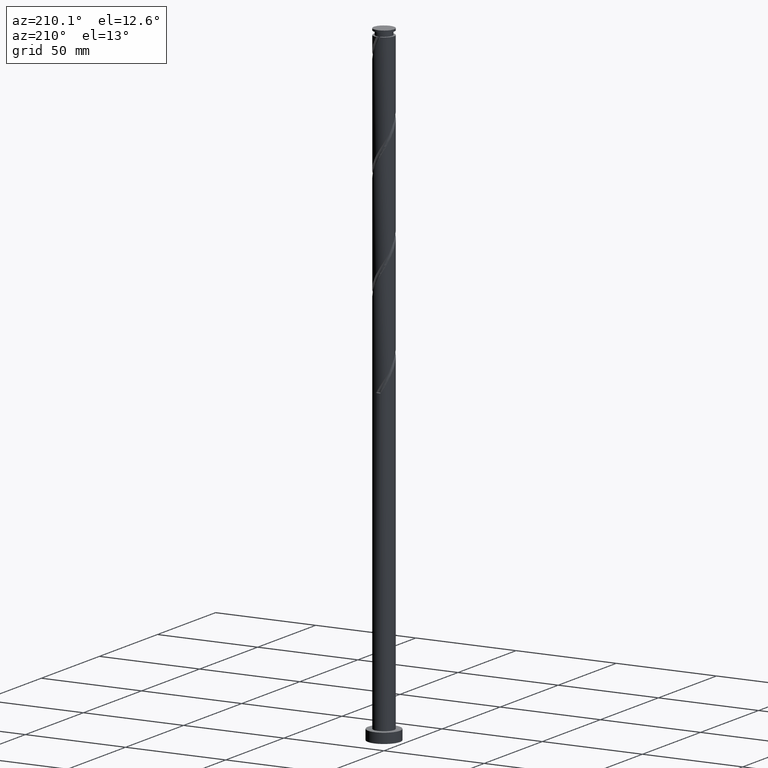
[diagram: clean part render]
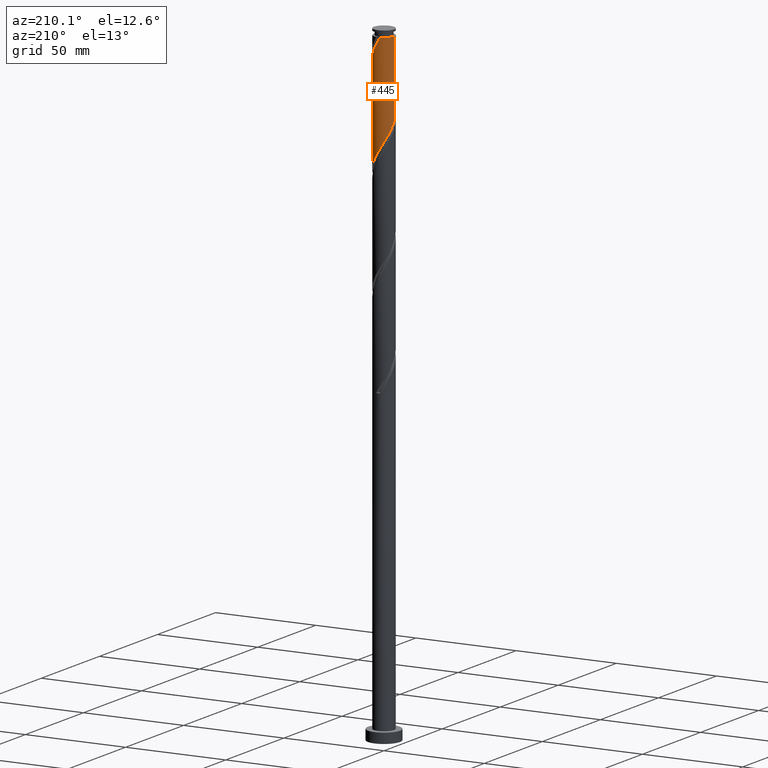
[diagram: same view with one face highlighted and labeled with its STEP entity id]
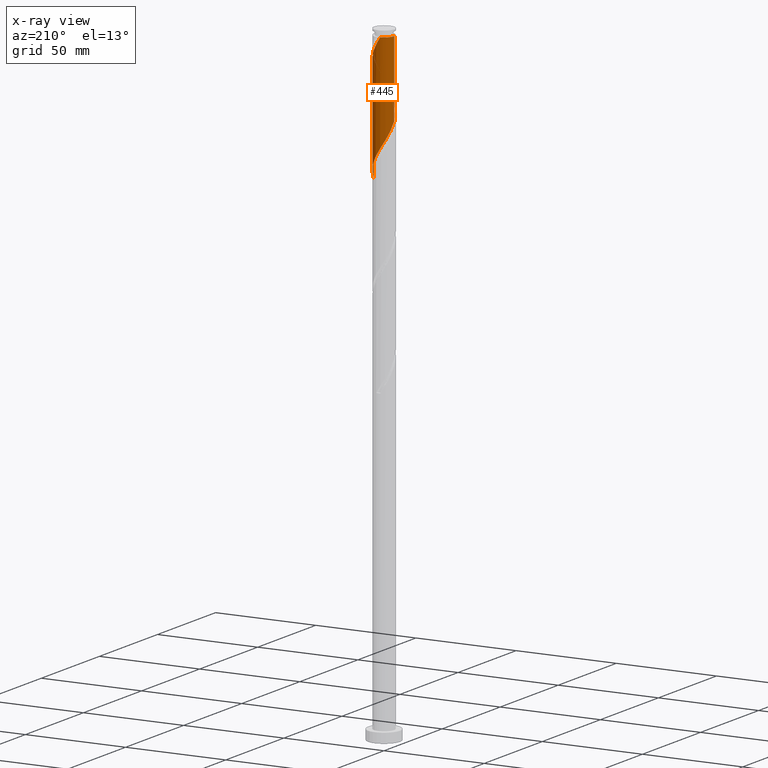
[diagram: x-ray of the same camera — body ghosted, the highlighted face saturated]
A machine part, auxiliary view. The second image highlights one B-rep face of the part: STEP entity #445.
The next image is the same camera in x-ray: the body ghosted, the highlighted face saturated — about 0% of this face is hidden behind the body in this view.
In plain terms, the highlighted cylindrical surface (edge-blend (fillet) strip) has radius 5.1 mm, axis along (-0, -0, -1).
Its self-contained STEP definition (entity closure, byte-faithful):
#21 = DIRECTION ( 'NONE',  ( -0.000000000000000000, -0.000000000000000000, -1.000000000000000000 ) ) ;
#43 = CARTESIAN_POINT ( 'NONE',  ( 2.625176406757035341, 4.410062444155315120, 256.6387158539478719 ) ) ;
#47 = CARTESIAN_POINT ( 'NONE',  ( 4.998000000000008214, 1.014887185848754703, 298.8262158539478719 ) ) ;
#159 = CARTESIAN_POINT ( 'NONE',  ( 5.100000000000009415, -4.104587718419679702E-16, 297.1516987760416555 ) ) ;
#168 = CARTESIAN_POINT ( 'NONE',  ( 5.099999999999999645, 6.245698675651500839E-16, 315.0000000000000000 ) ) ;
#171 = CARTESIAN_POINT ( 'NONE',  ( 3.909672782739889385, 3.274821938961404388, 253.8262158539478150 ) ) ;
#172 = EDGE_CURVE ( 'NONE', #254, #1301, #588, .T. ) ;
#183 = CARTESIAN_POINT ( 'NONE',  ( 5.100000000000009415, 0.5125692857821995130, 297.9899698550053131 ) ) ;
#193 = CARTESIAN_POINT ( 'NONE',  ( 0.1227177827140486510, 5.098523349540122318, 310.0762158539477014 ) ) ;
#200 = CARTESIAN_POINT ( 'NONE',  ( -5.099999999999974776, 0.000000000000000000, 311.9512158539478150 ) ) ;
#212 = DIRECTION ( 'NONE',  ( -1.000000000000000000, 0.000000000000000000, 0.000000000000000000 ) ) ;
#254 = VERTEX_POINT ( 'NONE', #159 ) ;
#264 = EDGE_LOOP ( 'NONE', ( #827, #448, #1432, #1891, #1431 ) ) ;
#282 = CARTESIAN_POINT ( 'NONE',  ( 5.100000000000000533, -3.000080477826772952E-15, 248.0007329318538893 ) ) ;
#293 = CARTESIAN_POINT ( 'NONE',  ( -2.834307612482653393, 4.278656598252051246, 266.0137158539477582 ) ) ;
#303 = CARTESIAN_POINT ( 'NONE',  ( 1.014887185848756257, 4.998000000000000220, 259.4512158539478150 ) ) ;
#315 = CARTESIAN_POINT ( 'NONE',  ( 4.646856060629399821, 2.101601473113273943, 300.7012158539477582 ) ) ;
#329 = DIRECTION ( 'NONE',  ( -1.000000000000000000, 0.000000000000000000, 0.000000000000000000 ) ) ;
#332 = CARTESIAN_POINT ( 'NONE',  ( 4.802074521325987888, 1.811154940797367052, 251.0137158539478150 ) ) ;
#341 =( BOUNDED_CURVE ( )  B_SPLINE_CURVE ( 2, ( #1652, #183, #47, #777, #315, #1377, #1678, #1079, #1660, #1233, #621, #1804, #932, #1534, #193, #714, #1741 ),
 .UNSPECIFIED., .F., .T. ) 
 B_SPLINE_CURVE_WITH_KNOTS ( ( 3, 2, 2, 2, 2, 2, 2, 2, 3 ),
 ( 0.6795303401299220836, 0.6875000000000000000, 0.6964285714285713969, 0.7053571428571426827, 0.7142857142857141906, 0.7232142857142855874, 0.7321428571428569843, 0.7410714285714283811, 0.7499999999999997780 ),
 .UNSPECIFIED. ) 
 CURVE ( )  GEOMETRIC_REPRESENTATION_ITEM ( )  RATIONAL_B_SPLINE_CURVE ( ( 0.9079949616362066322, 0.9039886423360696810, 0.9090909090909364831, 0.9033747362666113556, 0.9090909090909364831, 0.9033747362666113556, 0.9090909090909364831, 0.9033747362666113556, 0.9090909090909364831, 0.9033747362666113556, 0.9090909090909364831, 0.9033747362666113556, 0.9090909090909364831, 0.9033747362666113556, 0.9090909090909364831, 0.9033747362666115777, 0.9090909090909362611 ) ) 
 REPRESENTATION_ITEM ( '' )  );
#422 = VERTEX_POINT ( 'NONE', #1793 ) ;
#445 = ADVANCED_FACE ( 'NONE', ( #1214 ), #1663, .T. ) ;
#446 = VERTEX_POINT ( 'NONE', #1524 ) ;
#448 = ORIENTED_EDGE ( 'NONE', *, *, #172, .T. ) ;
#472 = CARTESIAN_POINT ( 'NONE',  ( -4.998000000000000220, 1.014887185848755147, 272.5762158539477582 ) ) ;
#479 = DIRECTION ( 'NONE',  ( -0.000000000000000000, -0.000000000000000000, -1.000000000000000000 ) ) ;
#569 = EDGE_CURVE ( 'NONE', #571, #446, #1384, .T. ) ;
#571 = VERTEX_POINT ( 'NONE', #200 ) ;
#588 = LINE ( 'NONE', #168, #1053 ) ;
#609 = CARTESIAN_POINT ( 'NONE',  ( -1.811154940797368607, 4.802074521325987888, 264.1387158539478719 ) ) ;
#618 = CARTESIAN_POINT ( 'NONE',  ( -5.100000000000003197, 0.5125692857821793069, 273.4124618528903170 ) ) ;
#621 = CARTESIAN_POINT ( 'NONE',  ( 2.322731276640016329, 4.540365559789026229, 306.3262158539477014 ) ) ;
#636 = CARTESIAN_POINT ( 'NONE',  ( 4.540365559789020899, 2.322731276640010112, 251.9512158539478150 ) ) ;
#714 = CARTESIAN_POINT ( 'NONE',  ( -0.4517478322279843694, 5.112350322896536348, 311.0137158539477014 ) ) ;
#738 = CARTESIAN_POINT ( 'NONE',  ( -4.883649677103470310, 1.578026539469510325, 271.6387158539478150 ) ) ;
#764 = CARTESIAN_POINT ( 'NONE',  ( 5.099999999999999645, 0.06136777554859547401, 248.1010956200790076 ) ) ;
#772 = CARTESIAN_POINT ( 'NONE',  ( 5.084696376183699407, 0.6971833976560910529, 249.1387158539478435 ) ) ;
#777 = CARTESIAN_POINT ( 'NONE',  ( 4.883649677103476527, 1.578026539469510547, 299.7637158539477582 ) ) ;
#785 = CARTESIAN_POINT ( 'NONE',  ( 2.101601473113273055, 4.646856060629392715, 257.5762158539478719 ) ) ;
#827 = ORIENTED_EDGE ( 'NONE', *, *, #1584, .F. ) ;
#862 = CARTESIAN_POINT ( 'NONE',  ( -4.062699354797735474, 3.082932686992380766, 268.8262158539478150 ) ) ;
#884 = CARTESIAN_POINT ( 'NONE',  ( -2.322731276640010556, 4.540365559789020899, 265.0762158539478150 ) ) ;
#929 = CARTESIAN_POINT ( 'NONE',  ( 4.278656598252052135, 2.834307612482652505, 252.8887158539477582 ) ) ;
#932 = CARTESIAN_POINT ( 'NONE',  ( 1.254169169226734493, 4.943385448754852085, 308.2012158539477582 ) ) ;
#948 = EDGE_CURVE ( 'NONE', #571, #422, #1881, .T. ) ;
#949 = DIRECTION ( 'NONE',  ( -0.000000000000000000, -0.000000000000000000, -1.000000000000000000 ) ) ;
#1026 = CARTESIAN_POINT ( 'NONE',  ( -3.715336265440155383, 3.540688967227725303, 267.8887158539478150 ) ) ;
#1053 = VECTOR ( 'NONE', #21, 1000.000000000000000 ) ;
#1054 = CARTESIAN_POINT ( 'NONE',  ( -4.410062444155316008, 2.625176406757034897, 269.7637158539478719 ) ) ;
#1064 = CARTESIAN_POINT ( 'NONE',  ( 3.540688967227726636, 3.715336265440154495, 254.7637158539478719 ) ) ;
#1079 = CARTESIAN_POINT ( 'NONE',  ( 3.715336265440162489, 3.540688967227728856, 303.5137158539478719 ) ) ;
#1177 = CARTESIAN_POINT ( 'NONE',  ( -4.646856060629392715, 2.101601473113271723, 270.7012158539478150 ) ) ;
#1198 = CARTESIAN_POINT ( 'NONE',  ( -0.1227177827140461114, 5.098523349540114324, 261.3262158539478150 ) ) ;
#1214 = FACE_OUTER_BOUND ( 'NONE', #264, .T. ) ;
#1227 = CARTESIAN_POINT ( 'NONE',  ( 5.100000000000000533, -3.000080477826772952E-15, 248.0007329318538893 ) ) ;
#1228 = VECTOR ( 'NONE', #1586, 1000.000000000000000 ) ;
#1233 = CARTESIAN_POINT ( 'NONE',  ( 2.834307612482659611, 4.278656598252057464, 305.3887158539477582 ) ) ;
#1262 = AXIS2_PLACEMENT_3D ( 'NONE', #1808, #479, #329 ) ;
#1301 = VERTEX_POINT ( 'NONE', #282 ) ;
#1338 = CARTESIAN_POINT ( 'NONE',  ( -0.6971833976560920521, 5.084696376183699407, 262.2637158539478719 ) ) ;
#1365 = CARTESIAN_POINT ( 'NONE',  ( 5.098523349540114324, 0.1227177827140452093, 248.2012158539478150 ) ) ;
#1374 = CARTESIAN_POINT ( 'NONE',  ( 3.082932686992382099, 4.062699354797734586, 255.7012158539478435 ) ) ;
#1377 = CARTESIAN_POINT ( 'NONE',  ( 4.410062444155324002, 2.625176406757037118, 301.6387158539477582 ) ) ;
#1384 = CIRCLE ( 'NONE', #1446, 5.099999999999974776 ) ;
#1416 = EDGE_CURVE ( 'NONE', #422, #1301, #1732, .T. ) ;
#1431 = ORIENTED_EDGE ( 'NONE', *, *, #569, .T. ) ;
#1432 = ORIENTED_EDGE ( 'NONE', *, *, #1416, .F. ) ;
#1446 = AXIS2_PLACEMENT_3D ( 'NONE', #1693, #949, #212 ) ;
#1488 = CARTESIAN_POINT ( 'NONE',  ( -1.254169169226730274, 4.943385448754844091, 263.2012158539478150 ) ) ;
#1524 = CARTESIAN_POINT ( 'NONE',  ( -1.014887185848754036, 4.998000000000002885, 311.9512158539478150 ) ) ;
#1534 = CARTESIAN_POINT ( 'NONE',  ( 0.6971833976560954937, 5.084696376183707400, 309.1387158539477582 ) ) ;
#1584 = EDGE_CURVE ( 'NONE', #254, #446, #341, .T. ) ;
#1586 = DIRECTION ( 'NONE',  ( -0.000000000000000000, -0.000000000000000000, -1.000000000000000000 ) ) ;
#1607 = CARTESIAN_POINT ( 'NONE',  ( -5.099999999999999645, 0.000000000000000000, 315.0000000000000000 ) ) ;
#1630 = CARTESIAN_POINT ( 'NONE',  ( -3.274821938961404388, 3.909672782739889385, 266.9512158539478150 ) ) ;
#1649 = CARTESIAN_POINT ( 'NONE',  ( -5.099999999999999645, 1.589594880042543830E-15, 274.2507329318539178 ) ) ;
#1652 = CARTESIAN_POINT ( 'NONE',  ( 5.100000000000009415, -4.104587718419679702E-16, 297.1516987760416555 ) ) ;
#1660 = CARTESIAN_POINT ( 'NONE',  ( 3.274821938961411050, 3.909672782739894270, 304.4512158539477014 ) ) ;
#1663 = CYLINDRICAL_SURFACE ( 'NONE', #1262, 5.099999999999999645 ) ;
#1678 = CARTESIAN_POINT ( 'NONE',  ( 4.062699354797742579, 3.082932686992382543, 302.5762158539476445 ) ) ;
#1693 = CARTESIAN_POINT ( 'NONE',  ( 0.000000000000000000, 0.000000000000000000, 311.9512158539478150 ) ) ;
#1732 =( BOUNDED_CURVE ( )  B_SPLINE_CURVE ( 2, ( #1649, #618, #472, #738, #1177, #1054, #862, #1026, #1630, #293, #884, #609, #1488, #1338, #1198, #1783, #303, #1794, #785, #43, #1374, #1064, #171, #929, #636, #332, #1811, #772, #1365, #764, #1227 ),
 .UNSPECIFIED., .F., .T. ) 
 B_SPLINE_CURVE_WITH_KNOTS ( ( 3, 2, 2, 2, 2, 2, 2, 2, 2, 2, 2, 2, 2, 2, 2, 3 ),
 ( 0.4295303401299216950, 0.4375000000000000000, 0.4464285714285714524, 0.4553571428571428492, 0.4642857142857143016, 0.4732142857142856984, 0.4821428571428571508, 0.4910714285714285476, 0.5000000000000000000, 0.5089285714285713969, 0.5178571428571429047, 0.5267857142857143016, 0.5357142857142856984, 0.5446428571428570953, 0.5535714285714286031, 0.5545303401299219725 ),
 .UNSPECIFIED. ) 
 CURVE ( )  GEOMETRIC_REPRESENTATION_ITEM ( )  RATIONAL_B_SPLINE_CURVE ( ( 0.9079949616361993048, 0.9039886423360619094, 0.9090909090909288226, 0.9033747362666038061, 0.9090909090909288226, 0.9033747362666038061, 0.9090909090909288226, 0.9033747362666038061, 0.9090909090909288226, 0.9033747362666038061, 0.9090909090909288226, 0.9033747362666038061, 0.9090909090909288226, 0.9033747362666038061, 0.9090909090909288226, 0.9033747362666038061, 0.9090909090909288226, 0.9033747362666038061, 0.9090909090909288226, 0.9033747362666038061, 0.9090909090909288226, 0.9033747362666038061, 0.9090909090909288226, 0.9033747362666038061, 0.9090909090909288226, 0.9033747362666038061, 0.9090909090909288226, 0.9033747362666038061, 0.9090909090909288226, 0.9084770030214706082, 0.9079949616361989717 ) ) 
 REPRESENTATION_ITEM ( '' )  );
#1741 = CARTESIAN_POINT ( 'NONE',  ( -1.014887185848754036, 4.998000000000003773, 311.9512158539478150 ) ) ;
#1783 = CARTESIAN_POINT ( 'NONE',  ( 0.4517478322280000791, 5.112350322896528354, 260.3887158539478150 ) ) ;
#1793 = CARTESIAN_POINT ( 'NONE',  ( -5.099999999999999645, 1.589594880042543830E-15, 274.2507329318539178 ) ) ;
#1794 = CARTESIAN_POINT ( 'NONE',  ( 1.578026539469511436, 4.883649677103470310, 258.5137158539477582 ) ) ;
#1804 = CARTESIAN_POINT ( 'NONE',  ( 1.811154940797373492, 4.802074521325994994, 307.2637158539477582 ) ) ;
#1808 = CARTESIAN_POINT ( 'NONE',  ( 0.000000000000000000, 0.000000000000000000, 315.0000000000000000 ) ) ;
#1811 = CARTESIAN_POINT ( 'NONE',  ( 4.943385448754844980, 1.254169169226729386, 250.0762158539478435 ) ) ;
#1881 = LINE ( 'NONE', #1607, #1228 ) ;
#1891 = ORIENTED_EDGE ( 'NONE', *, *, #948, .F. ) ;